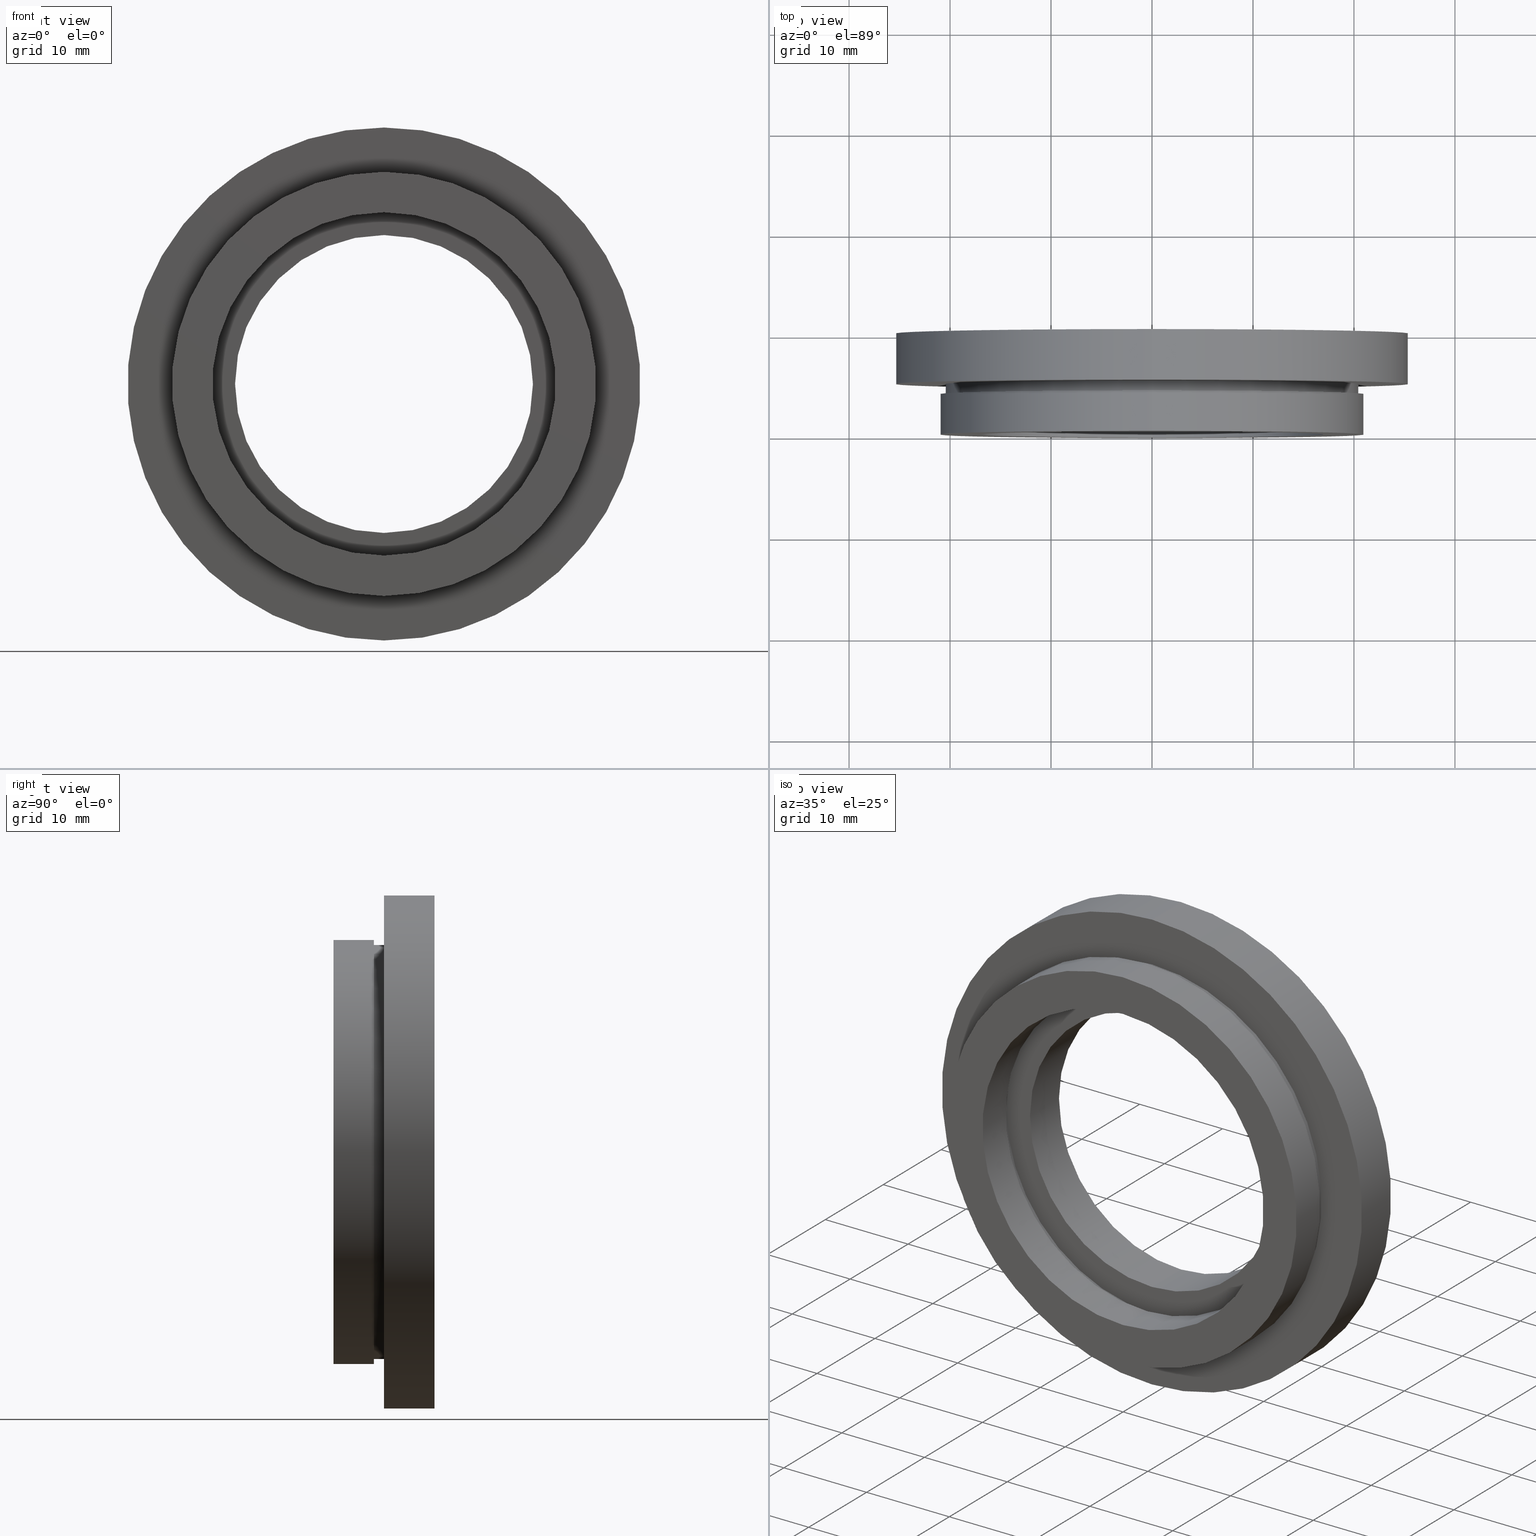
[diagram: canonical four-view strip — front | top / right | iso, engineering-drawing reading convention]
A machine part, canonical four-view strip (front | top / right | iso — engineering-drawing reading convention). The complete STEP part file that produces these views, byte-faithful:
ISO-10303-21;
HEADER;
FILE_DESCRIPTION (( 'STEP AP214' ),
    '1' );
FILE_NAME ('504107.STEP',
    '2019-10-10T06:06:36',
    ( 'user' ),
    ( '΢���й�' ),
    'SwSTEP 2.0',
    'SolidWorks 2016',
    '' );
FILE_SCHEMA (( 'AUTOMOTIVE_DESIGN' ));
ENDSEC;

DATA;
#1 = EDGE_CURVE ( 'NONE', #80, #63, #244, .T. ) ;
#2 =( GEOMETRIC_REPRESENTATION_CONTEXT ( 3 ) GLOBAL_UNCERTAINTY_ASSIGNED_CONTEXT ( ( #572 ) ) GLOBAL_UNIT_ASSIGNED_CONTEXT ( ( #119, #401, #480 ) ) REPRESENTATION_CONTEXT ( 'NONE', 'WORKASPACE' ) );
#3 = DIRECTION ( 'NONE',  ( -0.0000000000000000000, 1.000000000000000000, -0.0000000000000000000 ) ) ;
#4 = DIRECTION ( 'NONE',  ( -0.0000000000000000000, 1.000000000000000000, -0.0000000000000000000 ) ) ;
#5 = CIRCLE ( 'NONE', #340, 20.50000000000000000 ) ;
#6 = ORIENTED_EDGE ( 'NONE', *, *, #202, .F. ) ;
#7 = EDGE_CURVE ( 'NONE', #89, #113, #351, .T. ) ;
#8 = COLOUR_RGB ( '',1.000000000000000000, 1.000000000000000000, 1.000000000000000000 ) ;
#9 = DIRECTION ( 'NONE',  ( 0.0000000000000000000, 0.0000000000000000000, 1.000000000000000000 ) ) ;
#10 = ADVANCED_FACE ( 'NONE', ( #511 ), #22, .T. ) ;
#11 = DIRECTION ( 'NONE',  ( 0.0000000000000000000, 0.0000000000000000000, 1.000000000000000000 ) ) ;
#12 = VERTEX_POINT ( 'NONE', #310 ) ;
#13 = CARTESIAN_POINT ( 'NONE',  ( 2.081899558550500300E-015, 13.74468085106383300, -17.00000000000000000 ) ) ;
#14 = ORIENTED_EDGE ( 'NONE', *, *, #143, .T. ) ;
#15 = PRODUCT_DEFINITION_FORMATION_WITH_SPECIFIED_SOURCE ( '�κ�', '', #141, .NOT_KNOWN. ) ;
#16 = CARTESIAN_POINT ( 'NONE',  ( 14.75000000000000000, 9.999999999999998200, 0.0000000000000000000 ) ) ;
#17 = PRESENTATION_LAYER_ASSIGNMENT (  '', '', ( #567 ) ) ;
#18 = CARTESIAN_POINT ( 'NONE',  ( 2.571758278209441700E-015, 4.000000000000000000, -21.00000000000000000 ) ) ;
#19 = DIRECTION ( 'NONE',  ( -0.0000000000000000000, 1.000000000000000000, -0.0000000000000000000 ) ) ;
#20 = AXIS2_PLACEMENT_3D ( 'NONE', #391, #169, #229 ) ;
#21 = DIRECTION ( 'NONE',  ( 0.0000000000000000000, 0.0000000000000000000, 1.000000000000000000 ) ) ;
#22 = CYLINDRICAL_SURFACE ( 'NONE', #308, 20.50000000000000000 ) ;
#23 = DIRECTION ( 'NONE',  ( 1.000000000000000000, 0.0000000000000000000, 0.0000000000000000000 ) ) ;
#24 = FILL_AREA_STYLE ('',( #152 ) ) ;
#25 = FACE_BOUND ( 'NONE', #158, .T. ) ;
#26 =( NAMED_UNIT ( * ) PLANE_ANGLE_UNIT ( ) SI_UNIT ( $, .RADIAN. ) );
#27 = CARTESIAN_POINT ( 'NONE',  ( 0.0000000000000000000, 13.74468085106383300, 0.0000000000000000000 ) ) ;
#28 =( LENGTH_UNIT ( ) NAMED_UNIT ( * ) SI_UNIT ( .MILLI., .METRE. ) );
#29 = VERTEX_POINT ( 'NONE', #432 ) ;
#30 = APPLICATION_CONTEXT ( 'automotive_design' ) ;
#31 = UNCERTAINTY_MEASURE_WITH_UNIT (LENGTH_MEASURE( 1.000000000000000100E-005 ), #615, 'distance_accuracy_value', 'NONE');
#32 = SURFACE_STYLE_USAGE ( .BOTH. , #38 ) ;
#33 = CYLINDRICAL_SURFACE ( 'NONE', #322, 17.00000000000000000 ) ;
#34 = CARTESIAN_POINT ( 'NONE',  ( 0.0000000000000000000, 9.999999999999998200, 0.0000000000000000000 ) ) ;
#35 = EDGE_CURVE ( 'NONE', #400, #95, #331, .T. ) ;
#36 = AXIS2_PLACEMENT_3D ( 'NONE', #167, #198, #283 ) ;
#37 = CIRCLE ( 'NONE', #132, 17.00000000000000000 ) ;
#38 = SURFACE_SIDE_STYLE ('',( #448 ) ) ;
#39 = DIRECTION ( 'NONE',  ( 0.0000000000000000000, 0.0000000000000000000, 1.000000000000000000 ) ) ;
#40 = ORIENTED_EDGE ( 'NONE', *, *, #363, .T. ) ;
#41 =( LENGTH_UNIT ( ) NAMED_UNIT ( * ) SI_UNIT ( .MILLI., .METRE. ) );
#42 = VECTOR ( 'NONE', #146, 1000.000000000000000 ) ;
#43 = DIRECTION ( 'NONE',  ( 0.0000000000000000000, 0.0000000000000000000, 1.000000000000000000 ) ) ;
#44 = EDGE_CURVE ( 'NONE', #406, #49, #234, .T. ) ;
#45 = SURFACE_SIDE_STYLE ('',( #502 ) ) ;
#46 = LINE ( 'NONE', #13, #388 ) ;
#47 = DIRECTION ( 'NONE',  ( -0.0000000000000000000, 1.000000000000000000, -0.0000000000000000000 ) ) ;
#48 = EDGE_LOOP ( 'NONE', ( #481, #320 ) ) ;
#49 = VERTEX_POINT ( 'NONE', #214 ) ;
#50 = ADVANCED_FACE ( 'NONE', ( #175, #523 ), #98, .F. ) ;
#51 =( GEOMETRIC_REPRESENTATION_CONTEXT ( 3 ) GLOBAL_UNCERTAINTY_ASSIGNED_CONTEXT ( ( #31 ) ) GLOBAL_UNIT_ASSIGNED_CONTEXT ( ( #615, #120, #123 ) ) REPRESENTATION_CONTEXT ( 'NONE', 'WORKASPACE' ) );
#52 = PRODUCT_RELATED_PRODUCT_CATEGORY ( 'part', '', ( #141 ) ) ;
#53 = FILL_AREA_STYLE_COLOUR ( '', #466 ) ;
#54 = MECHANICAL_DESIGN_GEOMETRIC_PRESENTATION_REPRESENTATION (  '', ( #567 ), #86 ) ;
#55 = VECTOR ( 'NONE', #423, 1000.000000000000000 ) ;
#56 = STYLED_ITEM ( 'NONE', ( #162 ), #568 ) ;
#57 = DIRECTION ( 'NONE',  ( 0.0000000000000000000, -0.0000000000000000000, -1.000000000000000000 ) ) ;
#58 = DIRECTION ( 'NONE',  ( 0.0000000000000000000, 0.0000000000000000000, 1.000000000000000000 ) ) ;
#59 = CARTESIAN_POINT ( 'NONE',  ( 0.0000000000000000000, 0.0000000000000000000, 0.0000000000000000000 ) ) ;
#60 = PRESENTATION_STYLE_ASSIGNMENT (( #495 ) ) ;
#61 = CARTESIAN_POINT ( 'NONE',  ( 0.0000000000000000000, 4.999999999999999100, 0.0000000000000000000 ) ) ;
#62 = CARTESIAN_POINT ( 'NONE',  ( 0.0000000000000000000, 13.74468085106383300, 0.0000000000000000000 ) ) ;
#63 = VERTEX_POINT ( 'NONE', #457 ) ;
#64 = DIRECTION ( 'NONE',  ( 0.0000000000000000000, 0.0000000000000000000, 1.000000000000000000 ) ) ;
#65 = CIRCLE ( 'NONE', #136, 17.00000000000000000 ) ;
#66 = CARTESIAN_POINT ( 'NONE',  ( 21.00000000000000000, -4.286263797015735600E-016, 0.0000000000000000000 ) ) ;
#67 = EDGE_CURVE ( 'NONE', #49, #406, #5, .T. ) ;
#68 = COLOUR_RGB ( '',1.000000000000000000, 1.000000000000000000, 1.000000000000000000 ) ;
#69 = UNCERTAINTY_MEASURE_WITH_UNIT (LENGTH_MEASURE( 1.000000000000000100E-005 ), #496, 'distance_accuracy_value', 'NONE');
#70 = EDGE_CURVE ( 'NONE', #431, #63, #138, .T. ) ;
#71 = ORIENTED_EDGE ( 'NONE', *, *, #389, .T. ) ;
#72 = AXIS2_PLACEMENT_3D ( 'NONE', #232, #616, #617 ) ;
#73 = DIRECTION ( 'NONE',  ( -0.0000000000000000000, 1.000000000000000000, -0.0000000000000000000 ) ) ;
#74 = SHAPE_DEFINITION_REPRESENTATION ( #486, #543 ) ;
#75 = FILL_AREA_STYLE ('',( #518 ) ) ;
#76 = COLOUR_RGB ( '',1.000000000000000000, 1.000000000000000000, 1.000000000000000000 ) ;
#77 = EDGE_CURVE ( 'NONE', #360, #362, #102, .T. ) ;
#78 = DIRECTION ( 'NONE',  ( 0.0000000000000000000, 0.0000000000000000000, 1.000000000000000000 ) ) ;
#79 = VERTEX_POINT ( 'NONE', #334 ) ;
#80 = VERTEX_POINT ( 'NONE', #348 ) ;
#81 = ORIENTED_EDGE ( 'NONE', *, *, #416, .F. ) ;
#82 = DIRECTION ( 'NONE',  ( -0.0000000000000000000, 1.000000000000000000, -0.0000000000000000000 ) ) ;
#83 = DIRECTION ( 'NONE',  ( -0.0000000000000000000, 1.000000000000000000, -0.0000000000000000000 ) ) ;
#84 = VECTOR ( 'NONE', #163, 1000.000000000000000 ) ;
#85 = AXIS2_PLACEMENT_3D ( 'NONE', #27, #303, #130 ) ;
#86 =( GEOMETRIC_REPRESENTATION_CONTEXT ( 3 ) GLOBAL_UNCERTAINTY_ASSIGNED_CONTEXT ( ( #69 ) ) GLOBAL_UNIT_ASSIGNED_CONTEXT ( ( #496, #467, #465 ) ) REPRESENTATION_CONTEXT ( 'NONE', 'WORKASPACE' ) );
#87 = CYLINDRICAL_SURFACE ( 'NONE', #328, 17.60000000000000100 ) ;
#88 = ORIENTED_EDGE ( 'NONE', *, *, #404, .F. ) ;
#89 = VERTEX_POINT ( 'NONE', #246 ) ;
#90 = AXIS2_PLACEMENT_3D ( 'NONE', #16, #93, #57 ) ;
#91 =( NAMED_UNIT ( * ) PLANE_ANGLE_UNIT ( ) SI_UNIT ( $, .RADIAN. ) );
#92 = FILL_AREA_STYLE ('',( #354 ) ) ;
#93 = DIRECTION ( 'NONE',  ( 0.0000000000000000000, -1.000000000000000000, 0.0000000000000000000 ) ) ;
#94 = CARTESIAN_POINT ( 'NONE',  ( 0.0000000000000000000, 9.999999999999998200, 0.0000000000000000000 ) ) ;
#95 = VERTEX_POINT ( 'NONE', #314 ) ;
#96 = ORIENTED_EDGE ( 'NONE', *, *, #108, .F. ) ;
#97 = DIRECTION ( 'NONE',  ( 0.0000000000000000000, 0.0000000000000000000, 1.000000000000000000 ) ) ;
#98 = PLANE ( 'NONE',  #104 ) ;
#99 = ADVANCED_FACE ( 'NONE', ( #418 ), #233, .F. ) ;
#100 = DIRECTION ( 'NONE',  ( -0.0000000000000000000, 1.000000000000000000, -0.0000000000000000000 ) ) ;
#101 = APPLICATION_CONTEXT ( 'automotive_design' ) ;
#102 = LINE ( 'NONE', #282, #55 ) ;
#103 = EDGE_CURVE ( 'NONE', #555, #360, #612, .T. ) ;
#104 = AXIS2_PLACEMENT_3D ( 'NONE', #492, #420, #350 ) ;
#105 = VERTEX_POINT ( 'NONE', #452 ) ;
#106 = PLANE ( 'NONE',  #571 ) ;
#107 = ORIENTED_EDGE ( 'NONE', *, *, #134, .T. ) ;
#108 = EDGE_CURVE ( 'NONE', #400, #29, #37, .T. ) ;
#109 = AXIS2_PLACEMENT_3D ( 'NONE', #473, #544, #556 ) ;
#110 =( LENGTH_UNIT ( ) NAMED_UNIT ( * ) SI_UNIT ( .MILLI., .METRE. ) );
#111 = EDGE_LOOP ( 'NONE', ( #304, #461, #557, #280 ) ) ;
#112 = DIRECTION ( 'NONE',  ( 0.0000000000000000000, 0.0000000000000000000, 1.000000000000000000 ) ) ;
#113 = VERTEX_POINT ( 'NONE', #325 ) ;
#114 = EDGE_CURVE ( 'NONE', #531, #504, #187, .T. ) ;
#115 = CARTESIAN_POINT ( 'NONE',  ( 0.0000000000000000000, 9.999999999999998200, 0.0000000000000000000 ) ) ;
#116 = ADVANCED_FACE ( 'NONE', ( #583 ), #87, .F. ) ;
#117 = APPLICATION_PROTOCOL_DEFINITION ( 'draft international standard', 'automotive_design', 1998, #101 ) ;
#118 = CARTESIAN_POINT ( 'NONE',  ( 1.806354028742345800E-015, 13.74468085106383300, -14.75000000000000000 ) ) ;
#119 =( LENGTH_UNIT ( ) NAMED_UNIT ( * ) SI_UNIT ( .MILLI., .METRE. ) );
#120 =( NAMED_UNIT ( * ) PLANE_ANGLE_UNIT ( ) SI_UNIT ( $, .RADIAN. ) );
#121 = EDGE_LOOP ( 'NONE', ( #355, #453, #349, #421 ) ) ;
#122 = STYLED_ITEM ( 'NONE', ( #165 ), #543 ) ;
#123 =( NAMED_UNIT ( * ) SI_UNIT ( $, .STERADIAN. ) SOLID_ANGLE_UNIT ( ) );
#124 = AXIS2_PLACEMENT_3D ( 'NONE', #514, #73, #512 ) ;
#125 = DIRECTION ( 'NONE',  ( -0.0000000000000000000, 1.000000000000000000, -0.0000000000000000000 ) ) ;
#126 = PRESENTATION_LAYER_ASSIGNMENT (  '', '', ( #56 ) ) ;
#127 =( NAMED_UNIT ( * ) SI_UNIT ( $, .STERADIAN. ) SOLID_ANGLE_UNIT ( ) );
#128 = ORIENTED_EDGE ( 'NONE', *, *, #202, .T. ) ;
#129 = PRODUCT_CONTEXT ( 'NONE', #101, 'mechanical' ) ;
#130 = DIRECTION ( 'NONE',  ( 0.0000000000000000000, 0.0000000000000000000, 1.000000000000000000 ) ) ;
#131 = EDGE_CURVE ( 'NONE', #406, #531, #217, .T. ) ;
#132 = AXIS2_PLACEMENT_3D ( 'NONE', #193, #196, #195 ) ;
#133 = DIRECTION ( 'NONE',  ( 0.0000000000000000000, 0.0000000000000000000, 1.000000000000000000 ) ) ;
#134 = EDGE_CURVE ( 'NONE', #179, #361, #460, .T. ) ;
#135 = UNCERTAINTY_MEASURE_WITH_UNIT (LENGTH_MEASURE( 1.000000000000000100E-005 ), #41, 'distance_accuracy_value', 'NONE');
#136 = AXIS2_PLACEMENT_3D ( 'NONE', #59, #83, #64 ) ;
#137 = CARTESIAN_POINT ( 'NONE',  ( 0.0000000000000000000, 0.0000000000000000000, 0.0000000000000000000 ) ) ;
#138 = LINE ( 'NONE', #428, #374 ) ;
#139 =( NAMED_UNIT ( * ) PLANE_ANGLE_UNIT ( ) SI_UNIT ( $, .RADIAN. ) );
#140 = SURFACE_STYLE_USAGE ( .BOTH. , #383 ) ;
#141 = PRODUCT ( '504107', '504107', '', ( #129 ) ) ;
#142 = DIRECTION ( 'NONE',  ( -0.0000000000000000000, 1.000000000000000000, -0.0000000000000000000 ) ) ;
#143 = EDGE_CURVE ( 'NONE', #506, #362, #347, .T. ) ;
#144 = SURFACE_STYLE_USAGE ( .BOTH. , #45 ) ;
#145 = SURFACE_SIDE_STYLE ('',( #210 ) ) ;
#146 = DIRECTION ( 'NONE',  ( -0.0000000000000000000, 1.000000000000000000, -0.0000000000000000000 ) ) ;
#147 = CYLINDRICAL_SURFACE ( 'NONE', #109, 17.00000000000000000 ) ;
#148 = CARTESIAN_POINT ( 'NONE',  ( 0.0000000000000000000, 13.74468085106383300, 25.39999999999999900 ) ) ;
#149 = SURFACE_STYLE_USAGE ( .BOTH. , #145 ) ;
#150 = ORIENTED_EDGE ( 'NONE', *, *, #404, .T. ) ;
#151 = ORIENTED_EDGE ( 'NONE', *, *, #236, .T. ) ;
#152 = FILL_AREA_STYLE_COLOUR ( '', #228 ) ;
#153 = DIRECTION ( 'NONE',  ( -0.0000000000000000000, 1.000000000000000000, 0.0000000000000000000 ) ) ;
#154 = PRESENTATION_LAYER_ASSIGNMENT (  '', '', ( #122 ) ) ;
#155 = PLANE ( 'NONE',  #90 ) ;
#156 = MECHANICAL_DESIGN_GEOMETRIC_PRESENTATION_REPRESENTATION (  '', ( #56 ), #189 ) ;
#157 = EDGE_LOOP ( 'NONE', ( #584, #294, #410, #168 ) ) ;
#158 = EDGE_LOOP ( 'NONE', ( #558, #623 ) ) ;
#159 =( LENGTH_UNIT ( ) NAMED_UNIT ( * ) SI_UNIT ( .MILLI., .METRE. ) );
#160 = DIRECTION ( 'NONE',  ( 0.0000000000000000000, 0.0000000000000000000, 1.000000000000000000 ) ) ;
#161 = SURFACE_STYLE_FILL_AREA ( #92 ) ;
#162 = PRESENTATION_STYLE_ASSIGNMENT (( #144 ) ) ;
#163 = DIRECTION ( 'NONE',  ( -0.0000000000000000000, 1.000000000000000000, -0.0000000000000000000 ) ) ;
#164 = CIRCLE ( 'NONE', #36, 25.39999999999999900 ) ;
#165 = PRESENTATION_STYLE_ASSIGNMENT (( #140 ) ) ;
#166 = CARTESIAN_POINT ( 'NONE',  ( 0.0000000000000000000, 13.74468085106383300, 0.0000000000000000000 ) ) ;
#167 = CARTESIAN_POINT ( 'NONE',  ( 0.0000000000000000000, 9.999999999999998200, 0.0000000000000000000 ) ) ;
#168 = ORIENTED_EDGE ( 'NONE', *, *, #35, .F. ) ;
#169 = DIRECTION ( 'NONE',  ( -0.0000000000000000000, 1.000000000000000000, -0.0000000000000000000 ) ) ;
#170 = ORIENTED_EDGE ( 'NONE', *, *, #521, .F. ) ;
#171 = EDGE_CURVE ( 'NONE', #362, #506, #569, .T. ) ;
#172 = AXIS2_PLACEMENT_3D ( 'NONE', #250, #266, #264 ) ;
#173 = DIRECTION ( 'NONE',  ( -0.0000000000000000000, 1.000000000000000000, -0.0000000000000000000 ) ) ;
#174 = EDGE_CURVE ( 'NONE', #95, #79, #443, .T. ) ;
#175 = FACE_OUTER_BOUND ( 'NONE', #238, .T. ) ;
#176 = PRESENTATION_LAYER_ASSIGNMENT (  '', '', ( #208 ) ) ;
#177 = VERTEX_POINT ( 'NONE', #270 ) ;
#178 = AXIS2_PLACEMENT_3D ( 'NONE', #115, #378, #356 ) ;
#179 = VERTEX_POINT ( 'NONE', #222 ) ;
#180 = FILL_AREA_STYLE ('',( #436 ) ) ;
#181 = EDGE_LOOP ( 'NONE', ( #190, #224 ) ) ;
#182 = EDGE_LOOP ( 'NONE', ( #256, #14 ) ) ;
#183 = CARTESIAN_POINT ( 'NONE',  ( 2.510525938252074500E-015, 13.74468085106383300, -20.50000000000000000 ) ) ;
#184 = MECHANICAL_DESIGN_GEOMETRIC_PRESENTATION_REPRESENTATION (  '', ( #122 ), #476 ) ;
#185 = ADVANCED_FACE ( 'NONE', ( #429 ), #33, .F. ) ;
#186 = DIRECTION ( 'NONE',  ( 0.0000000000000000000, 0.0000000000000000000, 1.000000000000000000 ) ) ;
#187 = CIRCLE ( 'NONE', #237, 20.50000000000000000 ) ;
#188 = CARTESIAN_POINT ( 'NONE',  ( 0.0000000000000000000, 4.999999999999999100, 0.0000000000000000000 ) ) ;
#189 =( GEOMETRIC_REPRESENTATION_CONTEXT ( 3 ) GLOBAL_UNCERTAINTY_ASSIGNED_CONTEXT ( ( #365 ) ) GLOBAL_UNIT_ASSIGNED_CONTEXT ( ( #159, #346, #342 ) ) REPRESENTATION_CONTEXT ( 'NONE', 'WORKASPACE' ) );
#190 = ORIENTED_EDGE ( 'NONE', *, *, #554, .F. ) ;
#191 = DIRECTION ( 'NONE',  ( 0.0000000000000000000, 0.0000000000000000000, 1.000000000000000000 ) ) ;
#192 = CIRCLE ( 'NONE', #483, 14.75000000000000000 ) ;
#193 = CARTESIAN_POINT ( 'NONE',  ( 0.0000000000000000000, 0.0000000000000000000, 0.0000000000000000000 ) ) ;
#194 = SURFACE_STYLE_FILL_AREA ( #292 ) ;
#195 = DIRECTION ( 'NONE',  ( 0.0000000000000000000, 0.0000000000000000000, 1.000000000000000000 ) ) ;
#196 = DIRECTION ( 'NONE',  ( -0.0000000000000000000, 1.000000000000000000, -0.0000000000000000000 ) ) ;
#197 = ORIENTED_EDGE ( 'NONE', *, *, #593, .T. ) ;
#198 = DIRECTION ( 'NONE',  ( -0.0000000000000000000, 1.000000000000000000, -0.0000000000000000000 ) ) ;
#199 = FACE_OUTER_BOUND ( 'NONE', #395, .T. ) ;
#200 =( NAMED_UNIT ( * ) PLANE_ANGLE_UNIT ( ) SI_UNIT ( $, .RADIAN. ) );
#201 =( NAMED_UNIT ( * ) SI_UNIT ( $, .STERADIAN. ) SOLID_ANGLE_UNIT ( ) );
#202 = EDGE_CURVE ( 'NONE', #504, #531, #468, .T. ) ;
#203 = AXIS2_PLACEMENT_3D ( 'NONE', #442, #455, #226 ) ;
#204 = SURFACE_STYLE_FILL_AREA ( #306 ) ;
#205 = VECTOR ( 'NONE', #125, 1000.000000000000000 ) ;
#206 = EDGE_LOOP ( 'NONE', ( #170, #96, #219, #220 ) ) ;
#207 = EDGE_CURVE ( 'NONE', #179, #12, #527, .T. ) ;
#208 = STYLED_ITEM ( 'NONE', ( #371 ), #489 ) ;
#209 = CARTESIAN_POINT ( 'NONE',  ( 0.0000000000000000000, 13.74468085106383300, 0.0000000000000000000 ) ) ;
#210 = SURFACE_STYLE_FILL_AREA ( #24 ) ;
#211 = AXIS2_PLACEMENT_3D ( 'NONE', #330, #447, #242 ) ;
#212 = ORIENTED_EDGE ( 'NONE', *, *, #131, .F. ) ;
#213 = ORIENTED_EDGE ( 'NONE', *, *, #67, .F. ) ;
#214 = CARTESIAN_POINT ( 'NONE',  ( 0.0000000000000000000, 4.000000000000000000, 20.50000000000000000 ) ) ;
#215 = DIRECTION ( 'NONE',  ( 0.0000000000000000000, 0.0000000000000000000, 1.000000000000000000 ) ) ;
#216 = CARTESIAN_POINT ( 'NONE',  ( 0.0000000000000000000, 4.000000000000000000, 0.0000000000000000000 ) ) ;
#217 = LINE ( 'NONE', #183, #205 ) ;
#218 = CARTESIAN_POINT ( 'NONE',  ( 0.0000000000000000000, 4.000000000000000000, 0.0000000000000000000 ) ) ;
#219 = ORIENTED_EDGE ( 'NONE', *, *, #35, .T. ) ;
#220 = ORIENTED_EDGE ( 'NONE', *, *, #174, .T. ) ;
#221 = AXIS2_PLACEMENT_3D ( 'NONE', #34, #3, #97 ) ;
#222 = CARTESIAN_POINT ( 'NONE',  ( 2.155378366499341600E-015, 4.000000000000000000, -17.60000000000000100 ) ) ;
#223 = DIRECTION ( 'NONE',  ( -0.0000000000000000000, 1.000000000000000000, -0.0000000000000000000 ) ) ;
#224 = ORIENTED_EDGE ( 'NONE', *, *, #1, .F. ) ;
#225 = ORIENTED_EDGE ( 'NONE', *, *, #416, .T. ) ;
#226 = DIRECTION ( 'NONE',  ( 0.0000000000000000000, 0.0000000000000000000, 1.000000000000000000 ) ) ;
#227 = DIRECTION ( 'NONE',  ( -0.0000000000000000000, 1.000000000000000000, -0.0000000000000000000 ) ) ;
#228 = COLOUR_RGB ( '',1.000000000000000000, 1.000000000000000000, 1.000000000000000000 ) ;
#229 = DIRECTION ( 'NONE',  ( 0.0000000000000000000, 0.0000000000000000000, 1.000000000000000000 ) ) ;
#230 = FACE_OUTER_BOUND ( 'NONE', #182, .T. ) ;
#231 = FACE_BOUND ( 'NONE', #268, .T. ) ;
#232 = CARTESIAN_POINT ( 'NONE',  ( 0.0000000000000000000, 4.999999999999999100, 0.0000000000000000000 ) ) ;
#233 = CYLINDRICAL_SURFACE ( 'NONE', #203, 17.60000000000000100 ) ;
#234 = CIRCLE ( 'NONE', #272, 20.50000000000000000 ) ;
#235 = EDGE_LOOP ( 'NONE', ( #212, #536, #487, #249 ) ) ;
#236 = EDGE_CURVE ( 'NONE', #555, #506, #449, .T. ) ;
#237 = AXIS2_PLACEMENT_3D ( 'NONE', #188, #491, #186 ) ;
#238 = EDGE_LOOP ( 'NONE', ( #430, #594 ) ) ;
#239 = DIRECTION ( 'NONE',  ( -0.0000000000000000000, 1.000000000000000000, -0.0000000000000000000 ) ) ;
#240 = EDGE_CURVE ( 'NONE', #361, #179, #366, .T. ) ;
#241 = AXIS2_PLACEMENT_3D ( 'NONE', #62, #142, #160 ) ;
#242 = DIRECTION ( 'NONE',  ( 0.0000000000000000000, 0.0000000000000000000, 1.000000000000000000 ) ) ;
#243 = ORIENTED_EDGE ( 'NONE', *, *, #77, .T. ) ;
#244 = CIRCLE ( 'NONE', #178, 14.75000000000000000 ) ;
#245 = LINE ( 'NONE', #118, #42 ) ;
#246 = CARTESIAN_POINT ( 'NONE',  ( 3.110602869834276900E-015, 5.000000000000000900, -25.39999999999999900 ) ) ;
#247 = DIRECTION ( 'NONE',  ( -0.0000000000000000000, 1.000000000000000000, -0.0000000000000000000 ) ) ;
#248 = DIRECTION ( 'NONE',  ( -0.0000000000000000000, 1.000000000000000000, -0.0000000000000000000 ) ) ;
#249 = ORIENTED_EDGE ( 'NONE', *, *, #114, .F. ) ;
#250 = CARTESIAN_POINT ( 'NONE',  ( 0.0000000000000000000, 0.0000000000000000000, 0.0000000000000000000 ) ) ;
#251 = ORIENTED_EDGE ( 'NONE', *, *, #44, .F. ) ;
#252 = DIRECTION ( 'NONE',  ( 0.0000000000000000000, 0.0000000000000000000, 1.000000000000000000 ) ) ;
#253 = UNCERTAINTY_MEASURE_WITH_UNIT (LENGTH_MEASURE( 1.000000000000000100E-005 ), #28, 'distance_accuracy_value', 'NONE');
#254 = AXIS2_PLACEMENT_3D ( 'NONE', #367, #426, #133 ) ;
#255 = ORIENTED_EDGE ( 'NONE', *, *, #240, .F. ) ;
#256 = ORIENTED_EDGE ( 'NONE', *, *, #171, .T. ) ;
#257 = CARTESIAN_POINT ( 'NONE',  ( 2.155378366499341600E-015, 13.74468085106383300, -17.60000000000000100 ) ) ;
#258 = CARTESIAN_POINT ( 'NONE',  ( 0.0000000000000000000, 4.000000000000000000, 0.0000000000000000000 ) ) ;
#259 = CARTESIAN_POINT ( 'NONE',  ( 0.0000000000000000000, 4.999999999999999100, 14.75000000000000000 ) ) ;
#260 = EDGE_LOOP ( 'NONE', ( #278, #482 ) ) ;
#261 = EDGE_LOOP ( 'NONE', ( #444, #370, #6, #463 ) ) ;
#262 = EDGE_CURVE ( 'NONE', #49, #504, #618, .T. ) ;
#263 = AXIS2_PLACEMENT_3D ( 'NONE', #286, #284, #11 ) ;
#264 = DIRECTION ( 'NONE',  ( 0.0000000000000000000, 0.0000000000000000000, 1.000000000000000000 ) ) ;
#265 = CIRCLE ( 'NONE', #478, 21.00000000000000000 ) ;
#266 = DIRECTION ( 'NONE',  ( -0.0000000000000000000, 1.000000000000000000, -0.0000000000000000000 ) ) ;
#267 = MECHANICAL_DESIGN_GEOMETRIC_PRESENTATION_REPRESENTATION (  '', ( #208 ), #305 ) ;
#268 = EDGE_LOOP ( 'NONE', ( #213, #251 ) ) ;
#269 = ORIENTED_EDGE ( 'NONE', *, *, #497, .T. ) ;
#270 = CARTESIAN_POINT ( 'NONE',  ( 0.0000000000000000000, 9.999999999999998200, 25.39999999999999900 ) ) ;
#271 = CYLINDRICAL_SURFACE ( 'NONE', #507, 25.39999999999999900 ) ;
#272 = AXIS2_PLACEMENT_3D ( 'NONE', #216, #297, #382 ) ;
#273 = DIRECTION ( 'NONE',  ( 0.0000000000000000000, 0.0000000000000000000, 1.000000000000000000 ) ) ;
#274 = VECTOR ( 'NONE', #19, 1000.000000000000000 ) ;
#275 = DIRECTION ( 'NONE',  ( 0.0000000000000000000, 0.0000000000000000000, 1.000000000000000000 ) ) ;
#276 = FILL_AREA_STYLE_COLOUR ( '', #68 ) ;
#277 = ORIENTED_EDGE ( 'NONE', *, *, #1, .T. ) ;
#278 = ORIENTED_EDGE ( 'NONE', *, *, #327, .F. ) ;
#279 = FILL_AREA_STYLE_COLOUR ( '', #403 ) ;
#280 = ORIENTED_EDGE ( 'NONE', *, *, #593, .F. ) ;
#281 = CARTESIAN_POINT ( 'NONE',  ( 2.510525938252074500E-015, 4.999999999999999100, -20.50000000000000000 ) ) ;
#282 = CARTESIAN_POINT ( 'NONE',  ( 0.0000000000000000000, 13.74468085106383300, 21.00000000000000000 ) ) ;
#283 = DIRECTION ( 'NONE',  ( 0.0000000000000000000, 0.0000000000000000000, 1.000000000000000000 ) ) ;
#284 = DIRECTION ( 'NONE',  ( -0.0000000000000000000, 1.000000000000000000, -0.0000000000000000000 ) ) ;
#285 = VECTOR ( 'NONE', #553, 1000.000000000000000 ) ;
#286 = CARTESIAN_POINT ( 'NONE',  ( 0.0000000000000000000, 4.000000000000000000, 0.0000000000000000000 ) ) ;
#287 = AXIS2_PLACEMENT_3D ( 'NONE', #166, #373, #451 ) ;
#288 = ADVANCED_FACE ( 'NONE', ( #392, #610 ), #592, .F. ) ;
#289 = ORIENTED_EDGE ( 'NONE', *, *, #525, .T. ) ;
#290 = PRESENTATION_STYLE_ASSIGNMENT (( #149 ) ) ;
#291 = CIRCLE ( 'NONE', #72, 17.60000000000000100 ) ;
#292 = FILL_AREA_STYLE ('',( #450 ) ) ;
#293 = DIRECTION ( 'NONE',  ( -0.0000000000000000000, 1.000000000000000000, -0.0000000000000000000 ) ) ;
#294 = ORIENTED_EDGE ( 'NONE', *, *, #521, .T. ) ;
#295 = EDGE_LOOP ( 'NONE', ( #321, #602, #71, #88 ) ) ;
#296 = AXIS2_PLACEMENT_3D ( 'NONE', #624, #173, #566 ) ;
#297 = DIRECTION ( 'NONE',  ( -0.0000000000000000000, 1.000000000000000000, -0.0000000000000000000 ) ) ;
#298 = ADVANCED_FACE ( 'NONE', ( #396 ), #271, .T. ) ;
#299 = LINE ( 'NONE', #369, #274 ) ;
#300 = COLOUR_RGB ( '',1.000000000000000000, 1.000000000000000000, 1.000000000000000000 ) ;
#301 = EDGE_CURVE ( 'NONE', #360, #555, #265, .T. ) ;
#302 = AXIS2_PLACEMENT_3D ( 'NONE', #381, #223, #273 ) ;
#303 = DIRECTION ( 'NONE',  ( -0.0000000000000000000, 1.000000000000000000, -0.0000000000000000000 ) ) ;
#304 = ORIENTED_EDGE ( 'NONE', *, *, #363, .F. ) ;
#305 =( GEOMETRIC_REPRESENTATION_CONTEXT ( 3 ) GLOBAL_UNCERTAINTY_ASSIGNED_CONTEXT ( ( #464 ) ) GLOBAL_UNIT_ASSIGNED_CONTEXT ( ( #110, #490, #513 ) ) REPRESENTATION_CONTEXT ( 'NONE', 'WORKASPACE' ) );
#306 = FILL_AREA_STYLE ('',( #276 ) ) ;
#307 = DIRECTION ( 'NONE',  ( -0.0000000000000000000, 1.000000000000000000, -0.0000000000000000000 ) ) ;
#308 = AXIS2_PLACEMENT_3D ( 'NONE', #441, #239, #215 ) ;
#309 = ORIENTED_EDGE ( 'NONE', *, *, #500, .T. ) ;
#310 = CARTESIAN_POINT ( 'NONE',  ( 2.155378366499341600E-015, 4.999999999999999100, -17.60000000000000100 ) ) ;
#311 = EDGE_LOOP ( 'NONE', ( #128, #329 ) ) ;
#312 = DIRECTION ( 'NONE',  ( 0.0000000000000000000, -1.000000000000000000, 0.0000000000000000000 ) ) ;
#313 = PRESENTATION_STYLE_ASSIGNMENT (( #341 ) ) ;
#314 = CARTESIAN_POINT ( 'NONE',  ( 0.0000000000000000000, 4.000000000000000000, 17.00000000000000000 ) ) ;
#315 = ORIENTED_EDGE ( 'NONE', *, *, #207, .F. ) ;
#316 = STYLED_ITEM ( 'NONE', ( #425 ), #599 ) ;
#317 = LINE ( 'NONE', #148, #84 ) ;
#318 = FACE_OUTER_BOUND ( 'NONE', #121, .T. ) ;
#319 = DIRECTION ( 'NONE',  ( 0.0000000000000000000, 0.0000000000000000000, 1.000000000000000000 ) ) ;
#320 = ORIENTED_EDGE ( 'NONE', *, *, #103, .F. ) ;
#321 = ORIENTED_EDGE ( 'NONE', *, *, #134, .F. ) ;
#322 = AXIS2_PLACEMENT_3D ( 'NONE', #438, #408, #528 ) ;
#323 = CARTESIAN_POINT ( 'NONE',  ( 0.0000000000000000000, 4.000000000000000000, 0.0000000000000000000 ) ) ;
#324 = FACE_OUTER_BOUND ( 'NONE', #157, .T. ) ;
#325 = CARTESIAN_POINT ( 'NONE',  ( 0.0000000000000000000, 5.000000000000000900, 25.39999999999999900 ) ) ;
#326 = VECTOR ( 'NONE', #578, 1000.000000000000000 ) ;
#327 = EDGE_CURVE ( 'NONE', #113, #89, #456, .T. ) ;
#328 = AXIS2_PLACEMENT_3D ( 'NONE', #209, #227, #191 ) ;
#329 = ORIENTED_EDGE ( 'NONE', *, *, #114, .T. ) ;
#330 = CARTESIAN_POINT ( 'NONE',  ( 0.0000000000000000000, 5.000000000000000900, 0.0000000000000000000 ) ) ;
#331 = LINE ( 'NONE', #454, #393 ) ;
#332 = AXIS2_PLACEMENT_3D ( 'NONE', #61, #4, #9 ) ;
#333 =( LENGTH_UNIT ( ) NAMED_UNIT ( * ) SI_UNIT ( .MILLI., .METRE. ) );
#334 = CARTESIAN_POINT ( 'NONE',  ( 2.081899558550500300E-015, 4.000000000000000000, -17.00000000000000000 ) ) ;
#335 = FACE_OUTER_BOUND ( 'NONE', #261, .T. ) ;
#336 = DIRECTION ( 'NONE',  ( 0.0000000000000000000, -1.000000000000000000, 0.0000000000000000000 ) ) ;
#337 =( NAMED_UNIT ( * ) SI_UNIT ( $, .STERADIAN. ) SOLID_ANGLE_UNIT ( ) );
#338 = ORIENTED_EDGE ( 'NONE', *, *, #143, .F. ) ;
#339 = EDGE_LOOP ( 'NONE', ( #435, #151, #385, #519 ) ) ;
#340 = AXIS2_PLACEMENT_3D ( 'NONE', #258, #248, #78 ) ;
#341 = SURFACE_STYLE_USAGE ( .BOTH. , #379 ) ;
#342 =( NAMED_UNIT ( * ) SI_UNIT ( $, .STERADIAN. ) SOLID_ANGLE_UNIT ( ) );
#343 = FACE_OUTER_BOUND ( 'NONE', #339, .T. ) ;
#344 = ADVANCED_FACE ( 'NONE', ( #589, #598 ), #541, .F. ) ;
#345 = SURFACE_STYLE_FILL_AREA ( #75 ) ;
#346 =( NAMED_UNIT ( * ) PLANE_ANGLE_UNIT ( ) SI_UNIT ( $, .RADIAN. ) );
#347 = CIRCLE ( 'NONE', #263, 21.00000000000000000 ) ;
#348 = CARTESIAN_POINT ( 'NONE',  ( 1.806354028742345800E-015, 9.999999999999998200, -14.75000000000000000 ) ) ;
#349 = ORIENTED_EDGE ( 'NONE', *, *, #70, .T. ) ;
#350 = DIRECTION ( 'NONE',  ( 0.0000000000000000000, 0.0000000000000000000, 1.000000000000000000 ) ) ;
#351 = CIRCLE ( 'NONE', #211, 25.39999999999999900 ) ;
#352 = FACE_BOUND ( 'NONE', #181, .T. ) ;
#353 = CARTESIAN_POINT ( 'NONE',  ( 25.39999999999999900, 5.000000000000000000, 0.0000000000000000000 ) ) ;
#354 = FILL_AREA_STYLE_COLOUR ( '', #433 ) ;
#355 = ORIENTED_EDGE ( 'NONE', *, *, #546, .F. ) ;
#356 = DIRECTION ( 'NONE',  ( 0.0000000000000000000, 0.0000000000000000000, 1.000000000000000000 ) ) ;
#357 = PRESENTATION_STYLE_ASSIGNMENT (( #613 ) ) ;
#358 = PRESENTATION_LAYER_ASSIGNMENT (  '', '', ( #316 ) ) ;
#359 = AXIS2_PLACEMENT_3D ( 'NONE', #494, #515, #112 ) ;
#360 = VERTEX_POINT ( 'NONE', #606 ) ;
#361 = VERTEX_POINT ( 'NONE', #601 ) ;
#362 = VERTEX_POINT ( 'NONE', #591 ) ;
#363 = EDGE_CURVE ( 'NONE', #89, #547, #501, .T. ) ;
#364 = AXIS2_PLACEMENT_3D ( 'NONE', #218, #419, #275 ) ;
#365 = UNCERTAINTY_MEASURE_WITH_UNIT (LENGTH_MEASURE( 1.000000000000000100E-005 ), #159, 'distance_accuracy_value', 'NONE');
#366 = CIRCLE ( 'NONE', #359, 17.60000000000000100 ) ;
#367 = CARTESIAN_POINT ( 'NONE',  ( 0.0000000000000000000, 4.000000000000000000, 0.0000000000000000000 ) ) ;
#368 = AXIS2_PLACEMENT_3D ( 'NONE', #509, #100, #43 ) ;
#369 = CARTESIAN_POINT ( 'NONE',  ( 0.0000000000000000000, 13.74468085106383300, 17.60000000000000100 ) ) ;
#370 = ORIENTED_EDGE ( 'NONE', *, *, #131, .T. ) ;
#371 = PRESENTATION_STYLE_ASSIGNMENT (( #503 ) ) ;
#372 = CYLINDRICAL_SURFACE ( 'NONE', #241, 20.50000000000000000 ) ;
#373 = DIRECTION ( 'NONE',  ( -0.0000000000000000000, 1.000000000000000000, -0.0000000000000000000 ) ) ;
#374 = VECTOR ( 'NONE', #402, 1000.000000000000000 ) ;
#375 = CARTESIAN_POINT ( 'NONE',  ( 0.0000000000000000000, 4.999999999999999100, 17.60000000000000100 ) ) ;
#376 = ADVANCED_FACE ( 'NONE', ( #580 ), #596, .F. ) ;
#377 = CYLINDRICAL_SURFACE ( 'NONE', #85, 14.75000000000000000 ) ;
#378 = DIRECTION ( 'NONE',  ( -0.0000000000000000000, 1.000000000000000000, -0.0000000000000000000 ) ) ;
#379 = SURFACE_SIDE_STYLE ('',( #204 ) ) ;
#380 = ORIENTED_EDGE ( 'NONE', *, *, #70, .F. ) ;
#381 = CARTESIAN_POINT ( 'NONE',  ( 0.0000000000000000000, 4.000000000000000000, 0.0000000000000000000 ) ) ;
#382 = DIRECTION ( 'NONE',  ( 0.0000000000000000000, 0.0000000000000000000, 1.000000000000000000 ) ) ;
#383 = SURFACE_SIDE_STYLE ('',( #161 ) ) ;
#384 = VECTOR ( 'NONE', #422, 1000.000000000000000 ) ;
#385 = ORIENTED_EDGE ( 'NONE', *, *, #171, .F. ) ;
#386 = MECHANICAL_DESIGN_GEOMETRIC_PRESENTATION_REPRESENTATION (  '', ( #316 ), #413 ) ;
#387 = ADVANCED_FACE ( 'NONE', ( #324 ), #147, .F. ) ;
#388 = VECTOR ( 'NONE', #82, 1000.000000000000000 ) ;
#389 = EDGE_CURVE ( 'NONE', #12, #574, #291, .T. ) ;
#390 = AXIS2_PLACEMENT_3D ( 'NONE', #323, #307, #252 ) ;
#391 = CARTESIAN_POINT ( 'NONE',  ( 0.0000000000000000000, 13.74468085106383300, 0.0000000000000000000 ) ) ;
#392 = FACE_OUTER_BOUND ( 'NONE', #260, .T. ) ;
#393 = VECTOR ( 'NONE', #293, 1000.000000000000000 ) ;
#394 = ORIENTED_EDGE ( 'NONE', *, *, #236, .F. ) ;
#395 = EDGE_LOOP ( 'NONE', ( #540, #40, #81, #577 ) ) ;
#396 = FACE_OUTER_BOUND ( 'NONE', #111, .T. ) ;
#397 = CIRCLE ( 'NONE', #368, 14.75000000000000000 ) ;
#398 = VECTOR ( 'NONE', #479, 1000.000000000000000 ) ;
#399 = ORIENTED_EDGE ( 'NONE', *, *, #240, .T. ) ;
#400 = VERTEX_POINT ( 'NONE', #472 ) ;
#401 =( NAMED_UNIT ( * ) PLANE_ANGLE_UNIT ( ) SI_UNIT ( $, .RADIAN. ) );
#402 = DIRECTION ( 'NONE',  ( -0.0000000000000000000, 1.000000000000000000, -0.0000000000000000000 ) ) ;
#403 = COLOUR_RGB ( '',1.000000000000000000, 1.000000000000000000, 1.000000000000000000 ) ;
#404 = EDGE_CURVE ( 'NONE', #361, #574, #299, .T. ) ;
#405 = EDGE_LOOP ( 'NONE', ( #446, #470 ) ) ;
#406 = VERTEX_POINT ( 'NONE', #550 ) ;
#407 = CIRCLE ( 'NONE', #332, 17.60000000000000100 ) ;
#408 = DIRECTION ( 'NONE',  ( -0.0000000000000000000, 1.000000000000000000, -0.0000000000000000000 ) ) ;
#409 = DIRECTION ( 'NONE',  ( -0.0000000000000000000, 1.000000000000000000, 0.0000000000000000000 ) ) ;
#410 = ORIENTED_EDGE ( 'NONE', *, *, #587, .T. ) ;
#411 = ORIENTED_EDGE ( 'NONE', *, *, #103, .T. ) ;
#412 = DIRECTION ( 'NONE',  ( 0.0000000000000000000, -0.0000000000000000000, -1.000000000000000000 ) ) ;
#413 =( GEOMETRIC_REPRESENTATION_CONTEXT ( 3 ) GLOBAL_UNCERTAINTY_ASSIGNED_CONTEXT ( ( #253 ) ) GLOBAL_UNIT_ASSIGNED_CONTEXT ( ( #28, #26, #469 ) ) REPRESENTATION_CONTEXT ( 'NONE', 'WORKASPACE' ) );
#414 = AXIS2_PLACEMENT_3D ( 'NONE', #530, #573, #319 ) ;
#415 = CARTESIAN_POINT ( 'NONE',  ( 2.571758278209441700E-015, 0.0000000000000000000, -21.00000000000000000 ) ) ;
#416 = EDGE_CURVE ( 'NONE', #177, #547, #164, .T. ) ;
#417 = STYLED_ITEM ( 'NONE', ( #313 ), #185 ) ;
#418 = FACE_OUTER_BOUND ( 'NONE', #295, .T. ) ;
#419 = DIRECTION ( 'NONE',  ( -0.0000000000000000000, 1.000000000000000000, -0.0000000000000000000 ) ) ;
#420 = DIRECTION ( 'NONE',  ( -0.0000000000000000000, 1.000000000000000000, 0.0000000000000000000 ) ) ;
#421 = ORIENTED_EDGE ( 'NONE', *, *, #554, .T. ) ;
#422 = DIRECTION ( 'NONE',  ( -0.0000000000000000000, 1.000000000000000000, -0.0000000000000000000 ) ) ;
#423 = DIRECTION ( 'NONE',  ( -0.0000000000000000000, 1.000000000000000000, -0.0000000000000000000 ) ) ;
#424 =( LENGTH_UNIT ( ) NAMED_UNIT ( * ) SI_UNIT ( .MILLI., .METRE. ) );
#425 = PRESENTATION_STYLE_ASSIGNMENT (( #32 ) ) ;
#426 = DIRECTION ( 'NONE',  ( -0.0000000000000000000, 1.000000000000000000, -0.0000000000000000000 ) ) ;
#427 = EDGE_CURVE ( 'NONE', #113, #177, #317, .T. ) ;
#428 = CARTESIAN_POINT ( 'NONE',  ( 0.0000000000000000000, 13.74468085106383300, 14.75000000000000000 ) ) ;
#429 = FACE_OUTER_BOUND ( 'NONE', #206, .T. ) ;
#430 = ORIENTED_EDGE ( 'NONE', *, *, #500, .F. ) ;
#431 = VERTEX_POINT ( 'NONE', #259 ) ;
#432 = CARTESIAN_POINT ( 'NONE',  ( 2.081899558550500300E-015, 0.0000000000000000000, -17.00000000000000000 ) ) ;
#433 = COLOUR_RGB ( '',1.000000000000000000, 1.000000000000000000, 1.000000000000000000 ) ;
#434 = EDGE_LOOP ( 'NONE', ( #585, #499, #277, #380 ) ) ;
#435 = ORIENTED_EDGE ( 'NONE', *, *, #301, .T. ) ;
#436 = FILL_AREA_STYLE_COLOUR ( '', #8 ) ;
#437 = CYLINDRICAL_SURFACE ( 'NONE', #287, 21.00000000000000000 ) ;
#438 = CARTESIAN_POINT ( 'NONE',  ( 0.0000000000000000000, 13.74468085106383300, 0.0000000000000000000 ) ) ;
#439 = FACE_OUTER_BOUND ( 'NONE', #48, .T. ) ;
#440 = AXIS2_PLACEMENT_3D ( 'NONE', #353, #409, #590 ) ;
#441 = CARTESIAN_POINT ( 'NONE',  ( 0.0000000000000000000, 13.74468085106383300, 0.0000000000000000000 ) ) ;
#442 = CARTESIAN_POINT ( 'NONE',  ( 0.0000000000000000000, 13.74468085106383300, 0.0000000000000000000 ) ) ;
#443 = CIRCLE ( 'NONE', #390, 17.00000000000000000 ) ;
#444 = ORIENTED_EDGE ( 'NONE', *, *, #67, .T. ) ;
#445 = PRESENTATION_LAYER_ASSIGNMENT (  '', '', ( #417 ) ) ;
#446 = ORIENTED_EDGE ( 'NONE', *, *, #174, .F. ) ;
#447 = DIRECTION ( 'NONE',  ( -0.0000000000000000000, 1.000000000000000000, -0.0000000000000000000 ) ) ;
#448 = SURFACE_STYLE_FILL_AREA ( #582 ) ;
#449 = LINE ( 'NONE', #520, #398 ) ;
#450 = FILL_AREA_STYLE_COLOUR ( '', #300 ) ;
#451 = DIRECTION ( 'NONE',  ( 0.0000000000000000000, 0.0000000000000000000, 1.000000000000000000 ) ) ;
#452 = CARTESIAN_POINT ( 'NONE',  ( 1.806354028742345800E-015, 4.999999999999999100, -14.75000000000000000 ) ) ;
#453 = ORIENTED_EDGE ( 'NONE', *, *, #525, .F. ) ;
#454 = CARTESIAN_POINT ( 'NONE',  ( 0.0000000000000000000, 13.74468085106383300, 17.00000000000000000 ) ) ;
#455 = DIRECTION ( 'NONE',  ( -0.0000000000000000000, 1.000000000000000000, -0.0000000000000000000 ) ) ;
#456 = CIRCLE ( 'NONE', #414, 25.39999999999999900 ) ;
#457 = CARTESIAN_POINT ( 'NONE',  ( 0.0000000000000000000, 9.999999999999998200, 14.75000000000000000 ) ) ;
#458 = CIRCLE ( 'NONE', #254, 17.00000000000000000 ) ;
#459 = DIRECTION ( 'NONE',  ( 0.0000000000000000000, 0.0000000000000000000, 1.000000000000000000 ) ) ;
#460 = CIRCLE ( 'NONE', #302, 17.60000000000000100 ) ;
#461 = ORIENTED_EDGE ( 'NONE', *, *, #7, .T. ) ;
#462 = EDGE_CURVE ( 'NONE', #29, #400, #65, .T. ) ;
#463 = ORIENTED_EDGE ( 'NONE', *, *, #262, .F. ) ;
#464 = UNCERTAINTY_MEASURE_WITH_UNIT (LENGTH_MEASURE( 1.000000000000000100E-005 ), #110, 'distance_accuracy_value', 'NONE');
#465 =( NAMED_UNIT ( * ) SI_UNIT ( $, .STERADIAN. ) SOLID_ANGLE_UNIT ( ) );
#466 = COLOUR_RGB ( '',1.000000000000000000, 1.000000000000000000, 1.000000000000000000 ) ;
#467 =( NAMED_UNIT ( * ) PLANE_ANGLE_UNIT ( ) SI_UNIT ( $, .RADIAN. ) );
#468 = CIRCLE ( 'NONE', #296, 20.50000000000000000 ) ;
#469 =( NAMED_UNIT ( * ) SI_UNIT ( $, .STERADIAN. ) SOLID_ANGLE_UNIT ( ) );
#470 = ORIENTED_EDGE ( 'NONE', *, *, #587, .F. ) ;
#471 = SURFACE_SIDE_STYLE ('',( #194 ) ) ;
#472 = CARTESIAN_POINT ( 'NONE',  ( 0.0000000000000000000, 0.0000000000000000000, 17.00000000000000000 ) ) ;
#473 = CARTESIAN_POINT ( 'NONE',  ( 0.0000000000000000000, 13.74468085106383300, 0.0000000000000000000 ) ) ;
#474 = CIRCLE ( 'NONE', #609, 14.75000000000000000 ) ;
#475 = STYLED_ITEM ( 'NONE', ( #290 ), #621 ) ;
#476 =( GEOMETRIC_REPRESENTATION_CONTEXT ( 3 ) GLOBAL_UNCERTAINTY_ASSIGNED_CONTEXT ( ( #534 ) ) GLOBAL_UNIT_ASSIGNED_CONTEXT ( ( #424, #91, #337 ) ) REPRESENTATION_CONTEXT ( 'NONE', 'WORKASPACE' ) );
#477 = ADVANCED_FACE ( 'NONE', ( #335 ), #372, .T. ) ;
#478 = AXIS2_PLACEMENT_3D ( 'NONE', #529, #526, #542 ) ;
#479 = DIRECTION ( 'NONE',  ( -0.0000000000000000000, 1.000000000000000000, -0.0000000000000000000 ) ) ;
#480 =( NAMED_UNIT ( * ) SI_UNIT ( $, .STERADIAN. ) SOLID_ANGLE_UNIT ( ) );
#481 = ORIENTED_EDGE ( 'NONE', *, *, #301, .F. ) ;
#482 = ORIENTED_EDGE ( 'NONE', *, *, #7, .F. ) ;
#483 = AXIS2_PLACEMENT_3D ( 'NONE', #488, #563, #562 ) ;
#484 = MECHANICAL_DESIGN_GEOMETRIC_PRESENTATION_REPRESENTATION (  '', ( #417 ), #508 ) ;
#485 = CIRCLE ( 'NONE', #221, 25.39999999999999900 ) ;
#486 = PRODUCT_DEFINITION_SHAPE ( 'NONE', 'NONE',  #604 ) ;
#487 = ORIENTED_EDGE ( 'NONE', *, *, #262, .T. ) ;
#488 = CARTESIAN_POINT ( 'NONE',  ( 0.0000000000000000000, 4.999999999999999100, 0.0000000000000000000 ) ) ;
#489 = ADVANCED_FACE ( 'NONE', ( #343 ), #597, .T. ) ;
#490 =( NAMED_UNIT ( * ) PLANE_ANGLE_UNIT ( ) SI_UNIT ( $, .RADIAN. ) );
#491 = DIRECTION ( 'NONE',  ( -0.0000000000000000000, 1.000000000000000000, -0.0000000000000000000 ) ) ;
#492 = CARTESIAN_POINT ( 'NONE',  ( 17.60000000000000100, 4.999999999999999100, 0.0000000000000000000 ) ) ;
#493 = CARTESIAN_POINT ( 'NONE',  ( 0.0000000000000000000, 13.74468085106383300, 0.0000000000000000000 ) ) ;
#494 = CARTESIAN_POINT ( 'NONE',  ( 0.0000000000000000000, 4.000000000000000000, 0.0000000000000000000 ) ) ;
#495 = SURFACE_STYLE_USAGE ( .BOTH. , #471 ) ;
#496 =( LENGTH_UNIT ( ) NAMED_UNIT ( * ) SI_UNIT ( .MILLI., .METRE. ) );
#497 = EDGE_CURVE ( 'NONE', #105, #431, #397, .T. ) ;
#498 = SURFACE_SIDE_STYLE ('',( #345 ) ) ;
#499 = ORIENTED_EDGE ( 'NONE', *, *, #546, .T. ) ;
#500 = EDGE_CURVE ( 'NONE', #574, #12, #407, .T. ) ;
#501 = LINE ( 'NONE', #545, #326 ) ;
#502 = SURFACE_STYLE_FILL_AREA ( #180 ) ;
#503 = SURFACE_STYLE_USAGE ( .BOTH. , #498 ) ;
#504 = VERTEX_POINT ( 'NONE', #510 ) ;
#505 = AXIS2_PLACEMENT_3D ( 'NONE', #66, #153, #58 ) ;
#506 = VERTEX_POINT ( 'NONE', #18 ) ;
#507 = AXIS2_PLACEMENT_3D ( 'NONE', #493, #595, #586 ) ;
#508 =( GEOMETRIC_REPRESENTATION_CONTEXT ( 3 ) GLOBAL_UNCERTAINTY_ASSIGNED_CONTEXT ( ( #537 ) ) GLOBAL_UNIT_ASSIGNED_CONTEXT ( ( #333, #200, #201 ) ) REPRESENTATION_CONTEXT ( 'NONE', 'WORKASPACE' ) );
#509 = CARTESIAN_POINT ( 'NONE',  ( 0.0000000000000000000, 4.999999999999999100, 0.0000000000000000000 ) ) ;
#510 = CARTESIAN_POINT ( 'NONE',  ( 0.0000000000000000000, 4.999999999999999100, 20.50000000000000000 ) ) ;
#511 = FACE_OUTER_BOUND ( 'NONE', #235, .T. ) ;
#512 = DIRECTION ( 'NONE',  ( 0.0000000000000000000, 0.0000000000000000000, 1.000000000000000000 ) ) ;
#513 =( NAMED_UNIT ( * ) SI_UNIT ( $, .STERADIAN. ) SOLID_ANGLE_UNIT ( ) );
#514 = CARTESIAN_POINT ( 'NONE',  ( 0.0000000000000000000, 13.74468085106383300, 0.0000000000000000000 ) ) ;
#515 = DIRECTION ( 'NONE',  ( -0.0000000000000000000, 1.000000000000000000, -0.0000000000000000000 ) ) ;
#516 = CARTESIAN_POINT ( 'NONE',  ( 20.50000000000000000, 4.000000000000000000, 0.0000000000000000000 ) ) ;
#517 = PRODUCT_DEFINITION_CONTEXT ( 'detailed design', #30, 'design' ) ;
#518 = FILL_AREA_STYLE_COLOUR ( '', #76 ) ;
#519 = ORIENTED_EDGE ( 'NONE', *, *, #77, .F. ) ;
#520 = CARTESIAN_POINT ( 'NONE',  ( 2.571758278209441700E-015, 13.74468085106383300, -21.00000000000000000 ) ) ;
#521 = EDGE_CURVE ( 'NONE', #29, #79, #46, .T. ) ;
#522 = AXIS2_PLACEMENT_3D ( 'NONE', #600, #247, #459 ) ;
#523 = FACE_BOUND ( 'NONE', #549, .T. ) ;
#524 = CARTESIAN_POINT ( 'NONE',  ( 17.00000000000000000, 3.999999999999999100, 0.0000000000000000000 ) ) ;
#525 = EDGE_CURVE ( 'NONE', #431, #105, #192, .T. ) ;
#526 = DIRECTION ( 'NONE',  ( -0.0000000000000000000, 1.000000000000000000, -0.0000000000000000000 ) ) ;
#527 = LINE ( 'NONE', #257, #384 ) ;
#528 = DIRECTION ( 'NONE',  ( 0.0000000000000000000, 0.0000000000000000000, 1.000000000000000000 ) ) ;
#529 = CARTESIAN_POINT ( 'NONE',  ( 0.0000000000000000000, 0.0000000000000000000, 0.0000000000000000000 ) ) ;
#530 = CARTESIAN_POINT ( 'NONE',  ( 0.0000000000000000000, 5.000000000000000900, 0.0000000000000000000 ) ) ;
#531 = VERTEX_POINT ( 'NONE', #281 ) ;
#532 = EDGE_LOOP ( 'NONE', ( #315, #255, #150, #309 ) ) ;
#533 = PRESENTATION_LAYER_ASSIGNMENT (  '', '', ( #475 ) ) ;
#534 = UNCERTAINTY_MEASURE_WITH_UNIT (LENGTH_MEASURE( 1.000000000000000100E-005 ), #424, 'distance_accuracy_value', 'NONE');
#535 = STYLED_ITEM ( 'NONE', ( #357 ), #387 ) ;
#536 = ORIENTED_EDGE ( 'NONE', *, *, #44, .T. ) ;
#537 = UNCERTAINTY_MEASURE_WITH_UNIT (LENGTH_MEASURE( 1.000000000000000100E-005 ), #333, 'distance_accuracy_value', 'NONE');
#538 = EDGE_LOOP ( 'NONE', ( #225, #197 ) ) ;
#539 = ADVANCED_FACE ( 'NONE', ( #231, #230 ), #106, .F. ) ;
#540 = ORIENTED_EDGE ( 'NONE', *, *, #327, .T. ) ;
#541 = PLANE ( 'NONE',  #605 ) ;
#542 = DIRECTION ( 'NONE',  ( 0.0000000000000000000, 0.0000000000000000000, 1.000000000000000000 ) ) ;
#543 = ADVANCED_BREP_SHAPE_REPRESENTATION ( '504107', ( #599, #565 ), #51 ) ;
#544 = DIRECTION ( 'NONE',  ( -0.0000000000000000000, 1.000000000000000000, -0.0000000000000000000 ) ) ;
#545 = CARTESIAN_POINT ( 'NONE',  ( 3.110602869834276900E-015, 13.74468085106383300, -25.39999999999999900 ) ) ;
#546 = EDGE_CURVE ( 'NONE', #105, #80, #245, .T. ) ;
#547 = VERTEX_POINT ( 'NONE', #614 ) ;
#548 = PRESENTATION_LAYER_ASSIGNMENT (  '', '', ( #535 ) ) ;
#549 = EDGE_LOOP ( 'NONE', ( #289, #269 ) ) ;
#550 = CARTESIAN_POINT ( 'NONE',  ( 2.510525938252074500E-015, 4.000000000000000000, -20.50000000000000000 ) ) ;
#551 = ADVANCED_FACE ( 'NONE', ( #199 ), #552, .T. ) ;
#552 = CYLINDRICAL_SURFACE ( 'NONE', #20, 25.39999999999999900 ) ;
#553 = DIRECTION ( 'NONE',  ( -0.0000000000000000000, 1.000000000000000000, -0.0000000000000000000 ) ) ;
#554 = EDGE_CURVE ( 'NONE', #63, #80, #474, .T. ) ;
#555 = VERTEX_POINT ( 'NONE', #415 ) ;
#556 = DIRECTION ( 'NONE',  ( 0.0000000000000000000, 0.0000000000000000000, 1.000000000000000000 ) ) ;
#557 = ORIENTED_EDGE ( 'NONE', *, *, #427, .T. ) ;
#558 = ORIENTED_EDGE ( 'NONE', *, *, #108, .T. ) ;
#559 = SURFACE_SIDE_STYLE ('',( #581 ) ) ;
#560 = ADVANCED_FACE ( 'NONE', ( #352, #561 ), #155, .F. ) ;
#561 = FACE_OUTER_BOUND ( 'NONE', #538, .T. ) ;
#562 = DIRECTION ( 'NONE',  ( 0.0000000000000000000, 0.0000000000000000000, 1.000000000000000000 ) ) ;
#563 = DIRECTION ( 'NONE',  ( -0.0000000000000000000, 1.000000000000000000, -0.0000000000000000000 ) ) ;
#564 = MECHANICAL_DESIGN_GEOMETRIC_PRESENTATION_REPRESENTATION (  '', ( #475 ), #603 ) ;
#565 = AXIS2_PLACEMENT_3D ( 'NONE', #137, #21, #23 ) ;
#566 = DIRECTION ( 'NONE',  ( 0.0000000000000000000, 0.0000000000000000000, 1.000000000000000000 ) ) ;
#567 = STYLED_ITEM ( 'NONE', ( #60 ), #376 ) ;
#568 = ADVANCED_FACE ( 'NONE', ( #579 ), #437, .T. ) ;
#569 = CIRCLE ( 'NONE', #364, 21.00000000000000000 ) ;
#570 = EDGE_LOOP ( 'NONE', ( #399, #107 ) ) ;
#571 = AXIS2_PLACEMENT_3D ( 'NONE', #516, #312, #412 ) ;
#572 = UNCERTAINTY_MEASURE_WITH_UNIT (LENGTH_MEASURE( 1.000000000000000100E-005 ), #119, 'distance_accuracy_value', 'NONE');
#573 = DIRECTION ( 'NONE',  ( -0.0000000000000000000, 1.000000000000000000, -0.0000000000000000000 ) ) ;
#574 = VERTEX_POINT ( 'NONE', #375 ) ;
#575 = CLOSED_SHELL ( 'NONE', ( #489, #477, #551, #376, #99, #387, #185, #344, #116, #50, #621, #560, #298, #288, #10, #539, #568, #608 ) ) ;
#576 = FILL_AREA_STYLE ('',( #279 ) ) ;
#577 = ORIENTED_EDGE ( 'NONE', *, *, #427, .F. ) ;
#578 = DIRECTION ( 'NONE',  ( -0.0000000000000000000, 1.000000000000000000, -0.0000000000000000000 ) ) ;
#579 = FACE_OUTER_BOUND ( 'NONE', #620, .T. ) ;
#580 = FACE_OUTER_BOUND ( 'NONE', #434, .T. ) ;
#581 = SURFACE_STYLE_FILL_AREA ( #576 ) ;
#582 = FILL_AREA_STYLE ('',( #53 ) ) ;
#583 = FACE_OUTER_BOUND ( 'NONE', #532, .T. ) ;
#584 = ORIENTED_EDGE ( 'NONE', *, *, #462, .F. ) ;
#585 = ORIENTED_EDGE ( 'NONE', *, *, #497, .F. ) ;
#586 = DIRECTION ( 'NONE',  ( 0.0000000000000000000, 0.0000000000000000000, 1.000000000000000000 ) ) ;
#587 = EDGE_CURVE ( 'NONE', #79, #95, #458, .T. ) ;
#588 = MECHANICAL_DESIGN_GEOMETRIC_PRESENTATION_REPRESENTATION (  '', ( #535 ), #2 ) ;
#589 = FACE_BOUND ( 'NONE', #405, .T. ) ;
#590 = DIRECTION ( 'NONE',  ( 0.0000000000000000000, 0.0000000000000000000, 1.000000000000000000 ) ) ;
#591 = CARTESIAN_POINT ( 'NONE',  ( 0.0000000000000000000, 4.000000000000000000, 21.00000000000000000 ) ) ;
#592 = PLANE ( 'NONE',  #440 ) ;
#593 = EDGE_CURVE ( 'NONE', #547, #177, #485, .T. ) ;
#594 = ORIENTED_EDGE ( 'NONE', *, *, #389, .F. ) ;
#595 = DIRECTION ( 'NONE',  ( -0.0000000000000000000, 1.000000000000000000, -0.0000000000000000000 ) ) ;
#596 = CYLINDRICAL_SURFACE ( 'NONE', #522, 14.75000000000000000 ) ;
#597 = CYLINDRICAL_SURFACE ( 'NONE', #124, 21.00000000000000000 ) ;
#598 = FACE_OUTER_BOUND ( 'NONE', #570, .T. ) ;
#599 = MANIFOLD_SOLID_BREP ( '��ת1', #575 ) ;
#600 = CARTESIAN_POINT ( 'NONE',  ( 0.0000000000000000000, 13.74468085106383300, 0.0000000000000000000 ) ) ;
#601 = CARTESIAN_POINT ( 'NONE',  ( 0.0000000000000000000, 4.000000000000000000, 17.60000000000000100 ) ) ;
#602 = ORIENTED_EDGE ( 'NONE', *, *, #207, .T. ) ;
#603 =( GEOMETRIC_REPRESENTATION_CONTEXT ( 3 ) GLOBAL_UNCERTAINTY_ASSIGNED_CONTEXT ( ( #135 ) ) GLOBAL_UNIT_ASSIGNED_CONTEXT ( ( #41, #139, #127 ) ) REPRESENTATION_CONTEXT ( 'NONE', 'WORKASPACE' ) );
#604 = PRODUCT_DEFINITION ( 'δ֪', '', #15, #517 ) ;
#605 = AXIS2_PLACEMENT_3D ( 'NONE', #524, #336, #611 ) ;
#606 = CARTESIAN_POINT ( 'NONE',  ( 0.0000000000000000000, 0.0000000000000000000, 21.00000000000000000 ) ) ;
#607 = CARTESIAN_POINT ( 'NONE',  ( 0.0000000000000000000, 13.74468085106383300, 20.50000000000000000 ) ) ;
#608 = ADVANCED_FACE ( 'NONE', ( #439, #25 ), #622, .F. ) ;
#609 = AXIS2_PLACEMENT_3D ( 'NONE', #94, #47, #39 ) ;
#610 = FACE_BOUND ( 'NONE', #311, .T. ) ;
#611 = DIRECTION ( 'NONE',  ( 0.0000000000000000000, -0.0000000000000000000, -1.000000000000000000 ) ) ;
#612 = CIRCLE ( 'NONE', #172, 21.00000000000000000 ) ;
#613 = SURFACE_STYLE_USAGE ( .BOTH. , #559 ) ;
#614 = CARTESIAN_POINT ( 'NONE',  ( 3.110602869834276900E-015, 9.999999999999998200, -25.39999999999999900 ) ) ;
#615 =( LENGTH_UNIT ( ) NAMED_UNIT ( * ) SI_UNIT ( .MILLI., .METRE. ) );
#616 = DIRECTION ( 'NONE',  ( -0.0000000000000000000, 1.000000000000000000, -0.0000000000000000000 ) ) ;
#617 = DIRECTION ( 'NONE',  ( 0.0000000000000000000, 0.0000000000000000000, 1.000000000000000000 ) ) ;
#618 = LINE ( 'NONE', #607, #285 ) ;
#619 = APPLICATION_PROTOCOL_DEFINITION ( 'draft international standard', 'automotive_design', 1998, #30 ) ;
#620 = EDGE_LOOP ( 'NONE', ( #394, #411, #243, #338 ) ) ;
#621 = ADVANCED_FACE ( 'NONE', ( #318 ), #377, .F. ) ;
#622 = PLANE ( 'NONE',  #505 ) ;
#623 = ORIENTED_EDGE ( 'NONE', *, *, #462, .T. ) ;
#624 = CARTESIAN_POINT ( 'NONE',  ( 0.0000000000000000000, 4.999999999999999100, 0.0000000000000000000 ) ) ;
ENDSEC;
END-ISO-10303-21;
